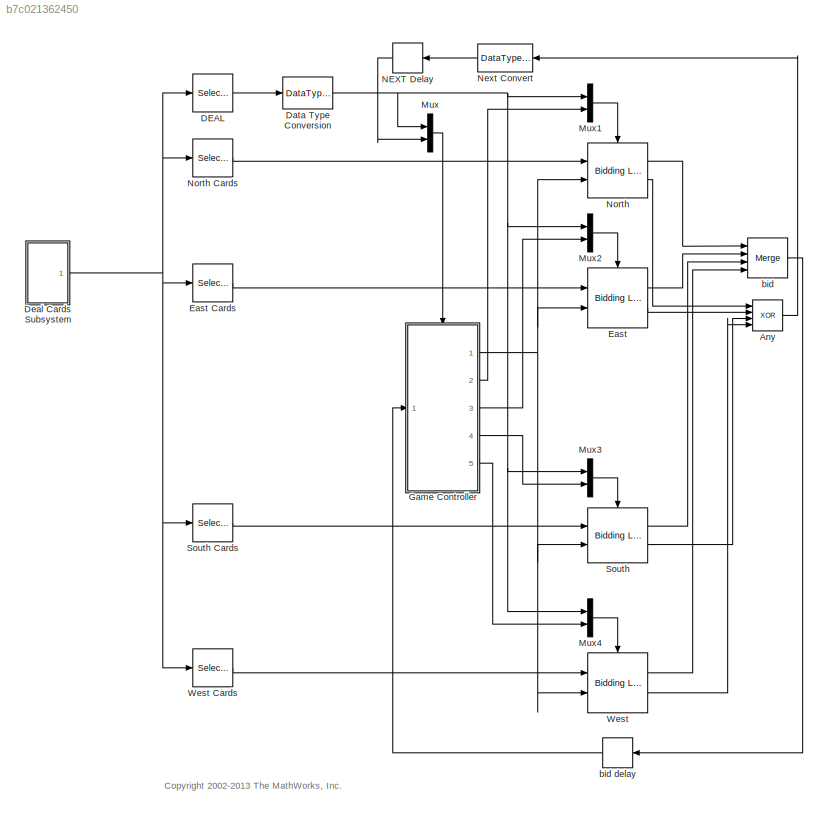
MODEL slx_b7c021362450
KIND model
CONFIG AbsTol = auto
CONFIG EnableMultiTasking = on
CONFIG FixedStep = auto
CONFIG MaxStep = auto
CONFIG MinStep = auto
CONFIG RelTol = 1e-3
CONFIG SampleTimeConstraint = Unconstrained
CONFIG Solver = ode45
CONFIG SolverName = ode45
CONFIG StartTime = 0.0
CONFIG StopTime = inf
BLOCK [Logic] Any
  AllPortsSameDT = off
  Inputs = 4
  Operator = XOR
  Ports = [4, 1]
BLOCK [Selector] DEAL
  IndexOptions = Index vector (dialog)
  Indices = [1]
  InputPortWidth = 53
  OutputSizes = 1
  Ports = [1, 1]
BLOCK [DataTypeConversion] Data Type Conversion
  OutDataTypeStr = boolean
  RndMeth = Floor
  SaturateOnIntegerOverflow = off
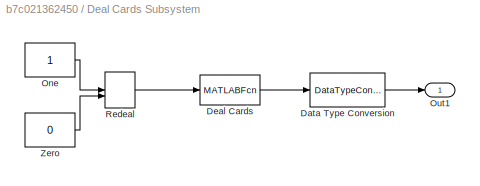
BLOCK [SubSystem] Deal Cards Subsystem
  Ports = [0, 1]
  RequestExecContextInheritance = off
  Variant = off
BLOCK [DataTypeConversion] Deal Cards Subsystem/Data Type Conversion
  OutDataTypeStr = uint8
  RndMeth = Floor
  SaturateOnIntegerOverflow = off
BLOCK [MATLABFcn] Deal Cards Subsystem/Deal Cards
  MATLABFcn = sf_deal_cards
  OutputDimensions = 53
  Ports = [1, 1]
BLOCK [Constant] Deal Cards Subsystem/One
BLOCK [Outport] Deal Cards Subsystem/Out1
  IconDisplay = Port number
BLOCK [ManualSwitch] Deal Cards Subsystem/Redeal
  CurrentSetting = 0
BLOCK [Constant] Deal Cards Subsystem/Zero
  Value = 0
BLOCK [Reference] East  REF=sf_bidder/Bidding Logic  (lib defined in mdl_761cc943649f, slx_5b381c97c86d)
  Ports = [2, 2, 0, 1]
  SourceBlock = sf_bidder/Bidding Logic
  SourceProductBaseCode = SF
  SourceProductName = Stateflow
  SourceType = SubSystem
BLOCK [Selector] East Cards
  IndexOptions = Index vector (dialog)
  Indices = [15:27]
  InputPortWidth = 53
  OutputSizes = 1
  Ports = [1, 1]
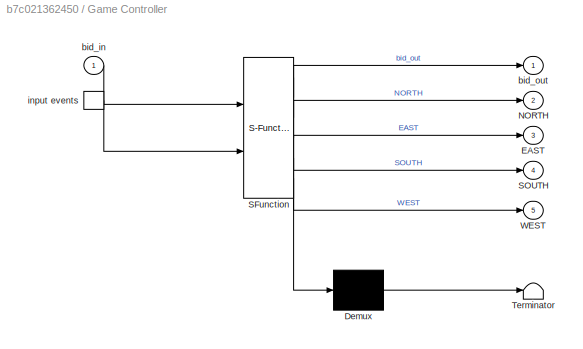
BLOCK [SubSystem] Game Controller
  ErrorFcn = Stateflow.Translate.translate
  PermitHierarchicalResolution = ExplicitOnly
  Ports = [1, 5, 0, 1]
  RequestExecContextInheritance = off
  SFBlockType = Chart
  TreatAsAtomicUnit = on
  Variant = off
BLOCK [Demux] Game Controller/ Demux 
  Outputs = 1
  Ports = [1, 1]
BLOCK [S-Function] Game Controller/ SFunction 
  EnableBusSupport = off
  FunctionName = sf_sfun
  PortCounts = [2 6]
  Ports = [2, 6]
  SFcnIsStateOwnerBlock = off
  SFunctionDeploymentMode = off
  Tag = Stateflow S-Function sf_bridge 1
BLOCK [Terminator] Game Controller/ Terminator 
BLOCK [TriggerPort] Game Controller/ input events 
  Ports = [0, 1]
  ShowOutputPort = on
  StatesWhenEnabling = reset
  TriggerType = either
  VariantControl = (inherit)
BLOCK [Outport] Game Controller/EAST
  IconDisplay = Port number
  Port = 3
BLOCK [Outport] Game Controller/NORTH
  IconDisplay = Port number
  Port = 2
BLOCK [Outport] Game Controller/SOUTH
  IconDisplay = Port number
  Port = 4
BLOCK [Outport] Game Controller/WEST
  IconDisplay = Port number
  Port = 5
BLOCK [Inport] Game Controller/bid_in
  IconDisplay = Port number
BLOCK [Outport] Game Controller/bid_out
  IconDisplay = Port number
BLOCK [Mux] Mux
  DisplayOption = bar
  Inputs = 2
  Ports = [2, 1]
BLOCK [Mux] Mux1
  DisplayOption = bar
  Inputs = 2
  Ports = [2, 1]
BLOCK [Mux] Mux2
  DisplayOption = bar
  Inputs = 2
  Ports = [2, 1]
BLOCK [Mux] Mux3
  DisplayOption = bar
  Inputs = 2
  Ports = [2, 1]
BLOCK [Mux] Mux4
  DisplayOption = bar
  Inputs = 2
  Ports = [2, 1]
BLOCK [Memory] NEXT Delay
BLOCK [DataTypeConversion] Next Convert
BLOCK [Reference] North  REF=sf_bidder/Bidding Logic  (lib defined in mdl_761cc943649f, slx_5b381c97c86d)
  Ports = [2, 2, 0, 1]
  SourceBlock = sf_bidder/Bidding Logic
  SourceProductBaseCode = SF
  SourceProductName = Stateflow
  SourceType = SubSystem
BLOCK [Selector] North Cards
  IndexOptions = Index vector (dialog)
  Indices = [2:14]
  InputPortWidth = 53
  OutputSizes = 1
  Ports = [1, 1]
BLOCK [Reference] South  REF=sf_bidder/Bidding Logic  (lib defined in mdl_761cc943649f, slx_5b381c97c86d)
  Ports = [2, 2, 0, 1]
  SourceBlock = sf_bidder/Bidding Logic
  SourceProductBaseCode = SF
  SourceProductName = Stateflow
  SourceType = SubSystem
BLOCK [Selector] South Cards
  IndexOptions = Index vector (dialog)
  Indices = [28:40]
  InputPortWidth = 53
  OutputSizes = 1
  Ports = [1, 1]
BLOCK [Reference] West  REF=sf_bidder/Bidding Logic  (lib defined in mdl_761cc943649f, slx_5b381c97c86d)
  Ports = [2, 2, 0, 1]
  SourceBlock = sf_bidder/Bidding Logic
  SourceProductBaseCode = SF
  SourceProductName = Stateflow
  SourceType = SubSystem
BLOCK [Selector] West Cards
  IndexOptions = Index vector (dialog)
  Indices = [41:53]
  InputPortWidth = 53
  OutputSizes = 1
  Ports = [1, 1]
BLOCK [Merge] bid
  Inputs = 4
  Ports = [4, 1]
BLOCK [Memory] bid delay
ANNOTATION (root): <copyright redacted>
LINE Any:1 -> Next Convert:1
LINE DEAL:1 -> Data Type Conversion:1
NET Data Type Conversion:1 -> Mux1:1, Mux2:1, Mux3:1, Mux4:1, Mux:1
LINE Deal Cards Subsystem/Data Type Conversion:1 -> Deal Cards Subsystem/Out1:1
LINE Deal Cards Subsystem/Deal Cards:1 -> Deal Cards Subsystem/Data Type Conversion:1
LINE Deal Cards Subsystem/One:1 -> Deal Cards Subsystem/Redeal:1
LINE Deal Cards Subsystem/Redeal:1 -> Deal Cards Subsystem/Deal Cards:1
LINE Deal Cards Subsystem/Zero:1 -> Deal Cards Subsystem/Redeal:2
NET Deal Cards Subsystem:1 -> DEAL:1, East Cards:1, North Cards:1, South Cards:1, West Cards:1
LINE East Cards:1 -> East:1
LINE East:1 -> bid:2
LINE East:2 -> Any:2
NET Game Controller:1 -> East:2, North:2, South:2, West:2
LINE Game Controller:2 -> Mux1:2
LINE Game Controller:3 -> Mux2:2
LINE Game Controller:4 -> Mux3:2
LINE Game Controller:5 -> Mux4:2
LINE Mux1:1 -> North:trigger
LINE Mux2:1 -> East:trigger
LINE Mux3:1 -> South:trigger
LINE Mux4:1 -> West:trigger
LINE Mux:1 -> Game Controller:trigger
LINE NEXT Delay:1 -> Mux:2
LINE Next Convert:1 -> NEXT Delay:1
LINE North Cards:1 -> North:1
LINE North:1 -> bid:1
LINE North:2 -> Any:1
LINE South Cards:1 -> South:1
LINE South:1 -> bid:3
LINE South:2 -> Any:3
LINE West Cards:1 -> West:1
LINE West:1 -> bid:4
LINE West:2 -> Any:4
LINE bid delay:1 -> Game Controller:1
LINE bid:1 -> bid delay:1
note: NET lines group one-source signal fan-out (src -> all destinations, sorted); 1:1 wires keep LINE
CHART Game Controller states=12 transitions=25
  STATE_LABEL 'Bidder'
  STATE_LABEL 'North\nNORTH;'
  STATE_LABEL 'East\nEAST;'
  STATE_LABEL 'Done'
  STATE_LABEL 'South\nSOUTH;'
  STATE_LABEL 'West\nWEST;'
  STATE_LABEL 'N_DEAL'
  STATE_LABEL 'NEXT_BID'
  STATE_LABEL 'NEXT_BID'
  STATE_LABEL 'BID\n{process_bid();}'
  STATE_LABEL 'E_DEAL'
  STATE_LABEL 'NEXT_BID'
  STATE_LABEL "ALL_PASS\n{ml.sf_bridge_state('all_pass');}"
  STATE_LABEL 'S_DEAL'
  STATE_LABEL 'W_DEAL'
  STATE_LABEL 'NEXT_BID'
  STATE_LABEL 'DEAL\n{pass_count = 0;\nbid_out = 0;}'
  STATE_LABEL 'North\nNORTH;'
  STATE_LABEL 'East\nEAST;'
  STATE_LABEL 'Done'
  STATE_LABEL 'South\nSOUTH;'
  STATE_LABEL 'West\nWEST;'
  STATE_LABEL 'process_bid()'
  STATE_LABEL "{ml.sf_bridge_state('bid', bid_in);}"
  STATE_LABEL '[bid_in]\n{pass_count = 0;\nbid_out = bid_in;\nsend(NEXT_BID, Bidder);}'
  STATE_LABEL '{pass_count++;}'
  STATE_LABEL '{send(NEXT_BID, Bidder);}'
  STATE_LABEL '[pass_count == 4]\n{send(ALL_PASS, Bidder);}'
  STATE_LABEL '[pass_count == 3]'
  STATE_LABEL '[bid_out]\n{send(ALL_PASS,Bidder);}'
  STATE_LABEL '{send(NEXT_BID, Bidder);}'
  STATE_LABEL 'Dealer'
  STATE_LABEL "North\nml.sf_bridge_state('deal', 'North');\nsend(N_DEAL, Bidder);"
  STATE_LABEL "East\nml.sf_bridge_state('deal', 'East');\nsend(E_DEAL, Bidder);"
  STATE_LABEL "West\nml.sf_bridge_state('deal', 'West');\nsend(W_DEAL, Bidder);"
  STATE_LABEL "South\nml.sf_bridge_state('deal', 'South');\nsend(S_DEAL, Bidder);"
  STATE_LABEL 'DEAL'
  STATE_LABEL 'DEAL'
  STATE_LABEL 'DEAL'
  STATE_LABEL 'DEAL'
